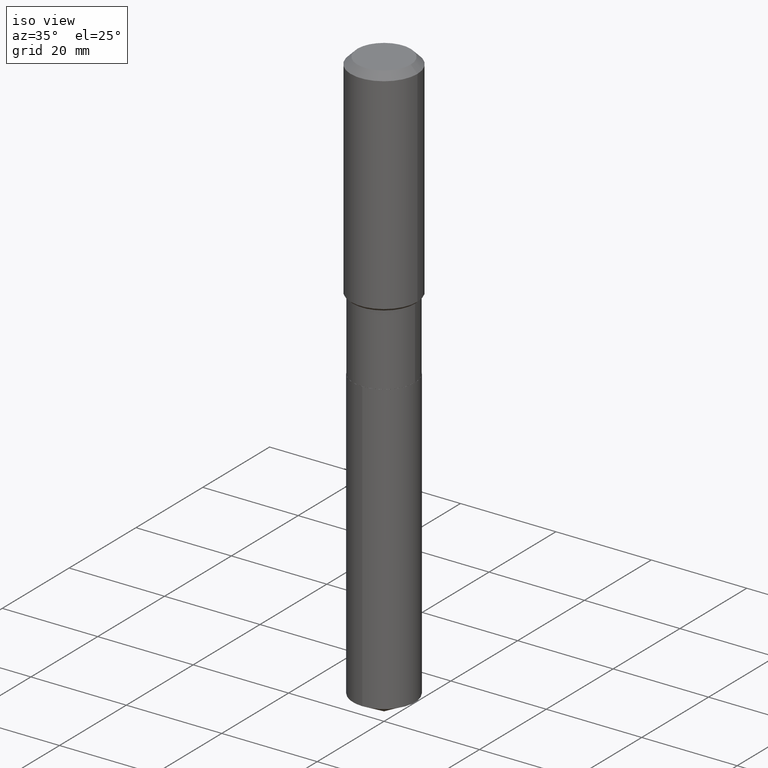
[diagram: clean part render]
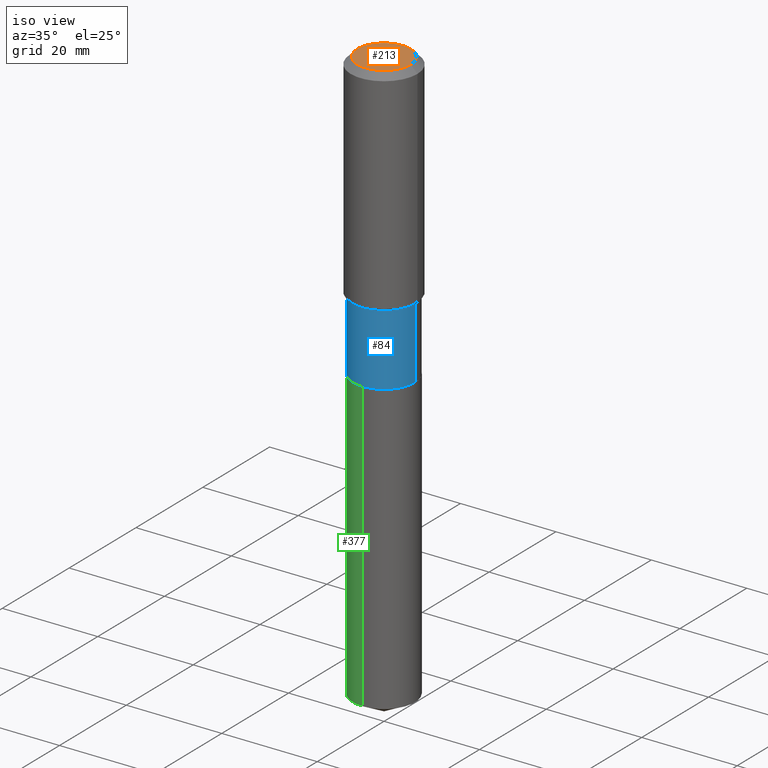
[diagram: same view with three faces highlighted in distinct colors, each labeled with its STEP entity id]
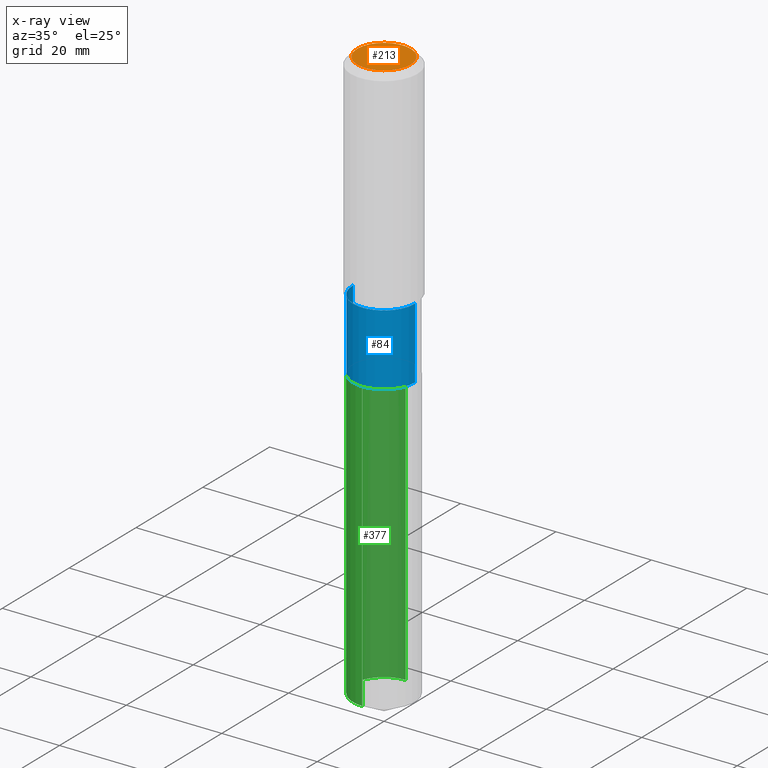
[diagram: x-ray of the same camera — body ghosted, the three highlighted faces saturated]
A machine part, iso view with three faces highlighted in distinct colors.
The next image is the same camera in x-ray (body ghosted, the three faces saturated) — at least one of them is partly hidden behind the body in this view.
Their STEP definitions:

[orange] entity #213 — the highlighted planar face has unit normal (0, -0, -1).
#114 = CARTESIAN_POINT ( 'NONE',  ( -4.719860820353095009E-47, 6.738710358733624243E-33, 1.930043355456227170E-18 ) ) ;
#156 = VERTEX_POINT ( 'NONE', #175 ) ;
#159 = EDGE_CURVE ( 'NONE', #350, #156, #270, .T. ) ;
#175 = CARTESIAN_POINT ( 'NONE',  ( 0.2204800000000000093, -1.797903149065768707E-15, 3.860086710924123164E-18 ) ) ;
#178 = DIRECTION ( 'NONE',  ( 1.000000000000000000, -6.982962677686266711E-15, 4.876132675269083677E-29 ) ) ;
#213 = ADVANCED_FACE ( 'NONE', ( #226 ), #269, .F. ) ;
#223 = DIRECTION ( 'NONE',  ( 1.000000000000000000, -6.982962677686266711E-15, 4.876132675269083677E-29 ) ) ;
#226 = FACE_OUTER_BOUND ( 'NONE', #411, .T. ) ;
#235 = AXIS2_PLACEMENT_3D ( 'NONE', #326, #250, #178 ) ;
#241 = CARTESIAN_POINT ( 'NONE',  ( -0.2204800000000000093, 1.635828836874783961E-15, 3.860086710901350968E-18 ) ) ;
#250 = DIRECTION ( 'NONE',  ( -2.445468806185136597E-29, 3.491481338843145583E-15, 1.000000000000000000 ) ) ;
#269 = PLANE ( 'NONE',  #448 ) ;
#270 = CIRCLE ( 'NONE', #235, 0.2204800000000000093 ) ;
#274 = EDGE_CURVE ( 'NONE', #156, #350, #288, .T. ) ;
#288 = CIRCLE ( 'NONE', #415, 0.2204800000000000093 ) ;
#302 = DIRECTION ( 'NONE',  ( -2.445468806185136597E-29, 3.491481338843145583E-15, 1.000000000000000000 ) ) ;
#326 = CARTESIAN_POINT ( 'NONE',  ( -9.439721640706190018E-47, 1.347742071746724849E-32, 3.860086710912454339E-18 ) ) ;
#350 = VERTEX_POINT ( 'NONE', #241 ) ;
#386 = DIRECTION ( 'NONE',  ( 2.438088387897960049E-29, -3.491481338843145188E-15, -1.000000000000000000 ) ) ;
#390 = ORIENTED_EDGE ( 'NONE', *, *, #159, .T. ) ;
#411 = EDGE_LOOP ( 'NONE', ( #390, #474 ) ) ;
#415 = AXIS2_PLACEMENT_3D ( 'NONE', #421, #302, #223 ) ;
#420 = DIRECTION ( 'NONE',  ( -1.000000000000000000, 6.982962677686265922E-15, -4.876176775795935793E-29 ) ) ;
#421 = CARTESIAN_POINT ( 'NONE',  ( -9.439721640706190018E-47, 1.347742071746724849E-32, 3.860086710912454339E-18 ) ) ;
#448 = AXIS2_PLACEMENT_3D ( 'NONE', #114, #386, #420 ) ;
#474 = ORIENTED_EDGE ( 'NONE', *, *, #274, .T. ) ;

[blue] entity #84 — the highlighted cylindrical surface (partial cylindrical patch) has radius 6.4999 mm, axis along (-0, 0, 1).
#7 = ORIENTED_EDGE ( 'NONE', *, *, #120, .T. ) ;
#27 = VERTEX_POINT ( 'NONE', #142 ) ;
#30 = DIRECTION ( 'NONE',  ( -2.445468806185136597E-29, 3.491481338843145583E-15, 1.000000000000000000 ) ) ;
#34 = CARTESIAN_POINT ( 'NONE',  ( -0.2559000000000000163, 1.818278860810096492E-15, -1.258755489596230312E-29 ) ) ;
#71 = ORIENTED_EDGE ( 'NONE', *, *, #467, .T. ) ;
#75 = EDGE_CURVE ( 'NONE', #206, #27, #331, .T. ) ;
#78 = VERTEX_POINT ( 'NONE', #182 ) ;
#84 = ADVANCED_FACE ( 'NONE', ( #440 ), #109, .T. ) ;
#105 = DIRECTION ( 'NONE',  ( -2.445468806185136877E-29, 3.491481338843145188E-15, 1.000000000000000000 ) ) ;
#106 = VECTOR ( 'NONE', #105, 39.37007874015748143 ) ;
#109 = CYLINDRICAL_SURFACE ( 'NONE', #391, 0.2559000000000000163 ) ;
#112 = CARTESIAN_POINT ( 'NONE',  ( -0.2559000000000000719, -5.400882529448933178E-15, -2.361699999999999910 ) ) ;
#120 = EDGE_CURVE ( 'NONE', #206, #122, #311, .T. ) ;
#122 = VERTEX_POINT ( 'NONE', #333 ) ;
#133 = ORIENTED_EDGE ( 'NONE', *, *, #313, .F. ) ;
#134 = DIRECTION ( 'NONE',  ( 1.000000000000000000, -6.982962677686269866E-15, 0.000000000000000000 ) ) ;
#142 = CARTESIAN_POINT ( 'NONE',  ( -0.2558999999999999608, -5.400882529448933178E-15, -1.773599999999999843 ) ) ;
#148 = DIRECTION ( 'NONE',  ( -2.445468806185136597E-29, 3.491481338843145583E-15, 1.000000000000000000 ) ) ;
#163 = CARTESIAN_POINT ( 'NONE',  ( 0.2559000000000000163, -1.786940149219915740E-15, 1.247813636926179898E-29 ) ) ;
#169 = AXIS2_PLACEMENT_3D ( 'NONE', #255, #30, #134 ) ;
#174 = EDGE_LOOP ( 'NONE', ( #196, #7, #71, #133 ) ) ;
#180 = DIRECTION ( 'NONE',  ( 1.000000000000000000, -6.982962677686266711E-15, 4.876176775795935232E-29 ) ) ;
#182 = CARTESIAN_POINT ( 'NONE',  ( 0.2558999999999999608, -7.979431451792117746E-15, -1.773599999999999843 ) ) ;
#196 = ORIENTED_EDGE ( 'NONE', *, *, #75, .F. ) ;
#206 = VERTEX_POINT ( 'NONE', #112 ) ;
#225 = CARTESIAN_POINT ( 'NONE',  ( 4.337283474649957727E-29, -6.192491302572202795E-15, -1.773599999999999843 ) ) ;
#238 = DIRECTION ( 'NONE',  ( -2.445468806185136877E-29, 3.491481338843145188E-15, 1.000000000000000000 ) ) ;
#255 = CARTESIAN_POINT ( 'NONE',  ( 5.775463679567436952E-29, -8.245831477945857334E-15, -2.361699999999999910 ) ) ;
#295 = CARTESIAN_POINT ( 'NONE',  ( 0.000000000000000000, 0.000000000000000000, 0.000000000000000000 ) ) ;
#297 = CIRCLE ( 'NONE', #456, 0.2558999999999999608 ) ;
#311 = CIRCLE ( 'NONE', #169, 0.2559000000000000163 ) ;
#313 = EDGE_CURVE ( 'NONE', #27, #78, #297, .T. ) ;
#317 = LINE ( 'NONE', #163, #328 ) ;
#328 = VECTOR ( 'NONE', #238, 39.37007874015748143 ) ;
#331 = LINE ( 'NONE', #34, #106 ) ;
#333 = CARTESIAN_POINT ( 'NONE',  ( 0.2559000000000000163, -1.003277162716577307E-14, -2.361699999999999910 ) ) ;
#345 = DIRECTION ( 'NONE',  ( 1.000000000000000000, -6.982962677686266711E-15, 0.000000000000000000 ) ) ;
#391 = AXIS2_PLACEMENT_3D ( 'NONE', #295, #478, #180 ) ;
#440 = FACE_OUTER_BOUND ( 'NONE', #174, .T. ) ;
#456 = AXIS2_PLACEMENT_3D ( 'NONE', #225, #148, #345 ) ;
#467 = EDGE_CURVE ( 'NONE', #122, #78, #317, .T. ) ;
#478 = DIRECTION ( 'NONE',  ( -2.445468806185136597E-29, 3.491481338843145583E-15, 1.000000000000000000 ) ) ;

[green] entity #377 — the highlighted cylindrical surface (partial cylindrical patch) has radius 6.4999 mm, axis along (-0, 0, 1).
#6 = EDGE_CURVE ( 'NONE', #428, #277, #374, .T. ) ;
#8 = CARTESIAN_POINT ( 'NONE',  ( 1.818278860810212454E-15, 0.2558999999999917452, -2.362200000000000522 ) ) ;
#9 = VERTEX_POINT ( 'NONE', #406 ) ;
#11 = DIRECTION ( 'NONE',  ( -6.982962677686266711E-15, -1.000000000000000000, 3.202635397027271900E-15 ) ) ;
#13 = CIRCLE ( 'NONE', #176, 0.2559000000000000163 ) ;
#14 = DIRECTION ( 'NONE',  ( -2.445241835066597652E-29, 3.491806374403287168E-15, 1.000000000000000000 ) ) ;
#16 = CARTESIAN_POINT ( 'NONE',  ( 5.776686413970529753E-29, -8.247577218615278049E-15, -2.362199999999999633 ) ) ;
#31 = CARTESIAN_POINT ( 'NONE',  ( -1.786940149219857758E-15, -0.2559000000000082875, -2.362199999999998745 ) ) ;
#35 = DIRECTION ( 'NONE',  ( -2.445241835066597932E-29, 3.491806374403287563E-15, 1.000000000000000000 ) ) ;
#37 = VECTOR ( 'NONE', #177, 39.37007874015748143 ) ;
#58 = DIRECTION ( 'NONE',  ( -6.982962677686266711E-15, -1.000000000000000000, 3.202635397027271900E-15 ) ) ;
#59 = ORIENTED_EDGE ( 'NONE', *, *, #489, .T. ) ;
#68 = VECTOR ( 'NONE', #35, 39.37007874015748143 ) ;
#83 = CYLINDRICAL_SURFACE ( 'NONE', #487, 0.2559000000000000163 ) ;
#136 = LINE ( 'NONE', #31, #37 ) ;
#146 = CARTESIAN_POINT ( 'NONE',  ( 1.818278860810154079E-15, 0.2558999999999917452, -2.362200000000000522 ) ) ;
#162 = CIRCLE ( 'NONE', #409, 0.2559000000000000163 ) ;
#165 = DIRECTION ( 'NONE',  ( -2.445241835066597652E-29, 3.491806374403287168E-15, 1.000000000000000000 ) ) ;
#176 = AXIS2_PLACEMENT_3D ( 'NONE', #435, #14, #357 ) ;
#177 = DIRECTION ( 'NONE',  ( -2.445241835066597932E-29, 3.491806374403287563E-15, 1.000000000000000000 ) ) ;
#202 = DIRECTION ( 'NONE',  ( -2.445241835066597652E-29, 3.491806374403287168E-15, 1.000000000000000000 ) ) ;
#208 = ORIENTED_EDGE ( 'NONE', *, *, #6, .F. ) ;
#232 = FACE_OUTER_BOUND ( 'NONE', #436, .T. ) ;
#277 = VERTEX_POINT ( 'NONE', #8 ) ;
#305 = ORIENTED_EDGE ( 'NONE', *, *, #388, .F. ) ;
#349 = CARTESIAN_POINT ( 'NONE',  ( -1.786940149219799777E-15, -0.2559000000000166142, -4.745835556437826952 ) ) ;
#357 = DIRECTION ( 'NONE',  ( -6.982962677686266711E-15, -1.000000000000000000, 4.270180529369696392E-15 ) ) ;
#358 = VERTEX_POINT ( 'NONE', #349 ) ;
#374 = LINE ( 'NONE', #146, #68 ) ;
#377 = ADVANCED_FACE ( 'NONE', ( #232 ), #83, .T. ) ;
#388 = EDGE_CURVE ( 'NONE', #277, #9, #162, .T. ) ;
#397 = CARTESIAN_POINT ( 'NONE',  ( 1.818278860810212454E-15, 0.2558999999999834740, -4.745835556437828728 ) ) ;
#400 = CARTESIAN_POINT ( 'NONE',  ( 5.776686413970529753E-29, -8.247577218615278049E-15, -2.362199999999999633 ) ) ;
#406 = CARTESIAN_POINT ( 'NONE',  ( -1.786940149219857758E-15, -0.2559000000000082875, -2.362199999999998745 ) ) ;
#409 = AXIS2_PLACEMENT_3D ( 'NONE', #400, #202, #11 ) ;
#428 = VERTEX_POINT ( 'NONE', #397 ) ;
#435 = CARTESIAN_POINT ( 'NONE',  ( 1.160525179612455455E-28, -1.657077104883921077E-14, -4.745835556437827840 ) ) ;
#436 = EDGE_LOOP ( 'NONE', ( #208, #451, #59, #305 ) ) ;
#451 = ORIENTED_EDGE ( 'NONE', *, *, #458, .T. ) ;
#458 = EDGE_CURVE ( 'NONE', #428, #358, #13, .T. ) ;
#487 = AXIS2_PLACEMENT_3D ( 'NONE', #16, #165, #58 ) ;
#489 = EDGE_CURVE ( 'NONE', #358, #9, #136, .T. ) ;